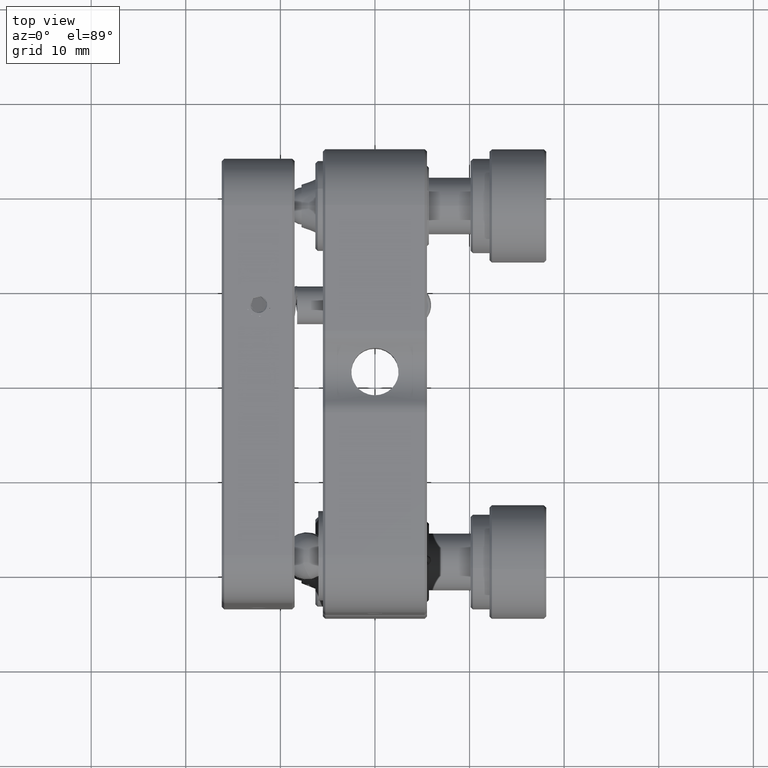
[diagram: clean part render]
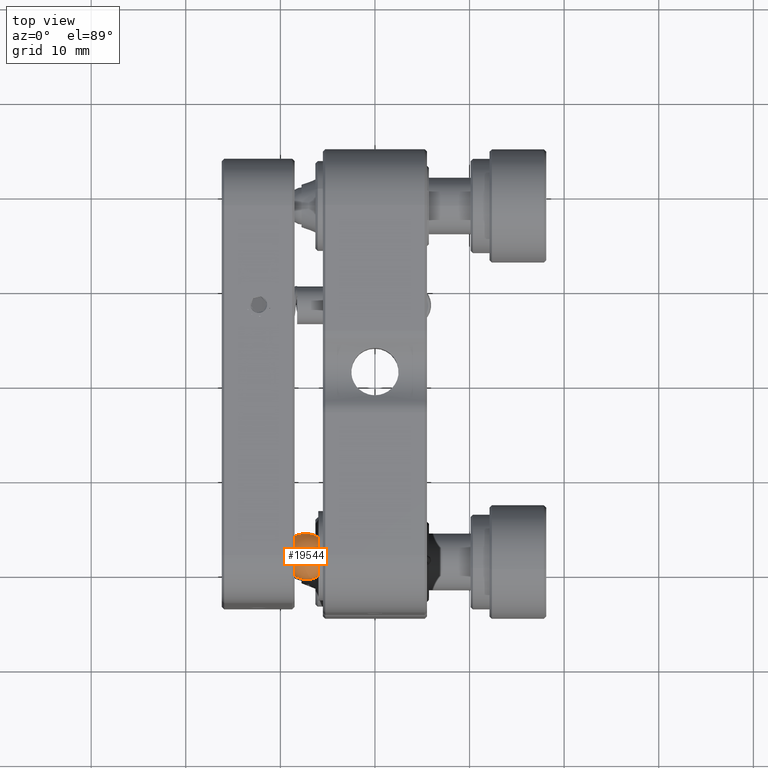
[diagram: same view with one face highlighted and labeled with its STEP entity id]
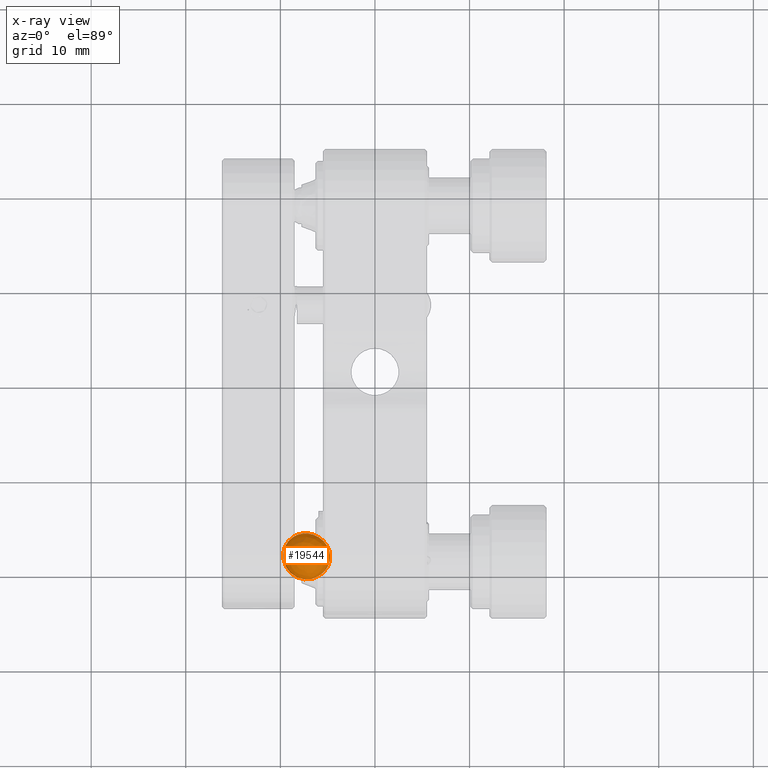
[diagram: x-ray of the same camera — body ghosted, the highlighted face saturated]
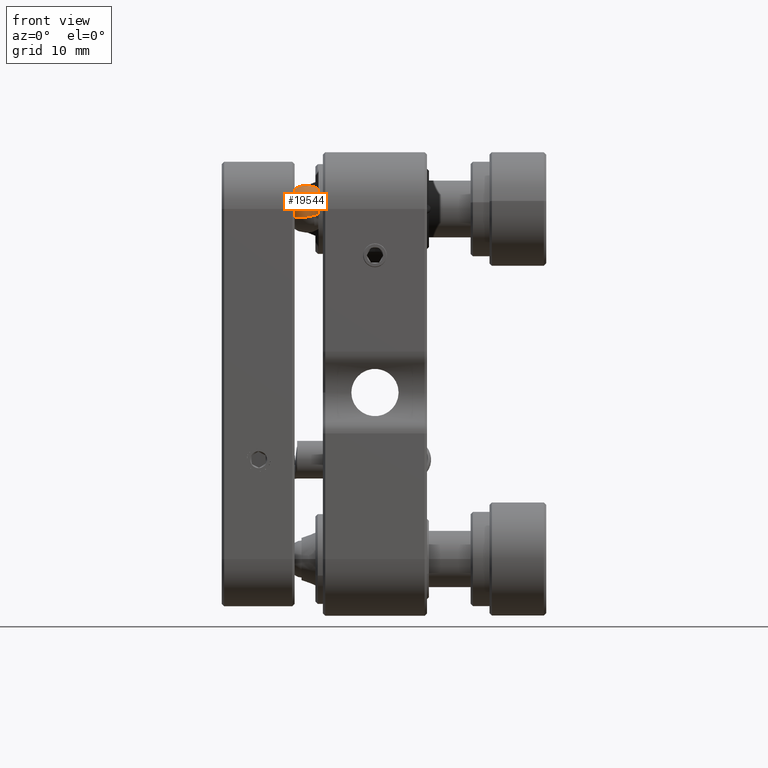
[diagram: same view with one face highlighted and labeled with its STEP entity id]
A machine part, top view. The second image highlights one B-rep face of the part: STEP entity #19544.
The next image is the same camera in x-ray: the body ghosted, the highlighted face saturated — about 0% of this face is hidden behind the body in this view.
A second angle (front view) of the same face is appended — the face is thin or edge-on in the first view.
In plain terms, the highlighted spherical surface has radius 2.5 mm.
Its self-contained STEP definition (entity closure, byte-faithful):
#1825 = CARTESIAN_POINT ( 'NONE',  ( -7.210533905932724252, -18.50000000000001066, 18.50000000000002842 ) ) ;
#1861 = AXIS2_PLACEMENT_3D ( 'NONE', #1825, #12313, #27145 ) ;
#2998 = CARTESIAN_POINT ( 'NONE',  ( -7.210533905932724252, -18.50000000000001066, 18.50000000000002842 ) ) ;
#7641 = VERTEX_POINT ( 'NONE', #39041 ) ;
#9208 = CARTESIAN_POINT ( 'NONE',  ( -7.210533905932724252, -18.50000000000001066, 18.50000000000002842 ) ) ;
#12313 = DIRECTION ( 'NONE',  ( -0.1470705566688611798, -0.3315323484842002677, 0.9319101637334266108 ) ) ;
#14466 = CIRCLE ( 'NONE', #1861, 2.500000000000000000 ) ;
#19544 = ADVANCED_FACE ( 'NONE', ( #41156 ), #56002, .T. ) ;
#20063 = EDGE_LOOP ( 'NONE', ( #57479, #27511 ) ) ;
#23116 = DIRECTION ( 'NONE',  ( 0.1470705566688612353, 0.3315323484842002122, -0.9319101637334268329 ) ) ;
#23559 = EDGE_CURVE ( 'NONE', #40220, #7641, #39328, .T. ) ;
#27145 = DIRECTION ( 'NONE',  ( 0.0000000000000000000, -0.9421551553276271695, -0.3351770625946451365 ) ) ;
#27511 = ORIENTED_EDGE ( 'NONE', *, *, #51068, .T. ) ;
#27913 = DIRECTION ( 'NONE',  ( 0.0000000000000000000, 0.9421551553276271695, 0.3351770625946451365 ) ) ;
#39041 = CARTESIAN_POINT ( 'NONE',  ( -4.847386436225478157, -17.92410377737189009, 19.07782140595431031 ) ) ;
#39328 = CIRCLE ( 'NONE', #43047, 2.500000000000000000 ) ;
#40220 = VERTEX_POINT ( 'NONE', #41313 ) ;
#41156 = FACE_OUTER_BOUND ( 'NONE', #20063, .T. ) ;
#41313 = CARTESIAN_POINT ( 'NONE',  ( -9.573681375639971236, -19.07589622262813123, 17.92217859404574298 ) ) ;
#43047 = AXIS2_PLACEMENT_3D ( 'NONE', #2998, #23116, #27913 ) ;
#44125 = DIRECTION ( 'NONE',  ( 0.2913000123373115091, -0.9148886644999925100, -0.2795049809604511215 ) ) ;
#51068 = EDGE_CURVE ( 'NONE', #40220, #7641, #14466, .T. ) ;
#56002 = SPHERICAL_SURFACE ( 'NONE', #59690, 2.500000000000000000 ) ;
#57479 = ORIENTED_EDGE ( 'NONE', *, *, #23559, .F. ) ;
#59690 = AXIS2_PLACEMENT_3D ( 'NONE', #9208, #63934, #44125 ) ;
#63934 = DIRECTION ( 'NONE',  ( 0.1470705566688610133, 0.3315323484842009338, -0.9319101637334263888 ) ) ;